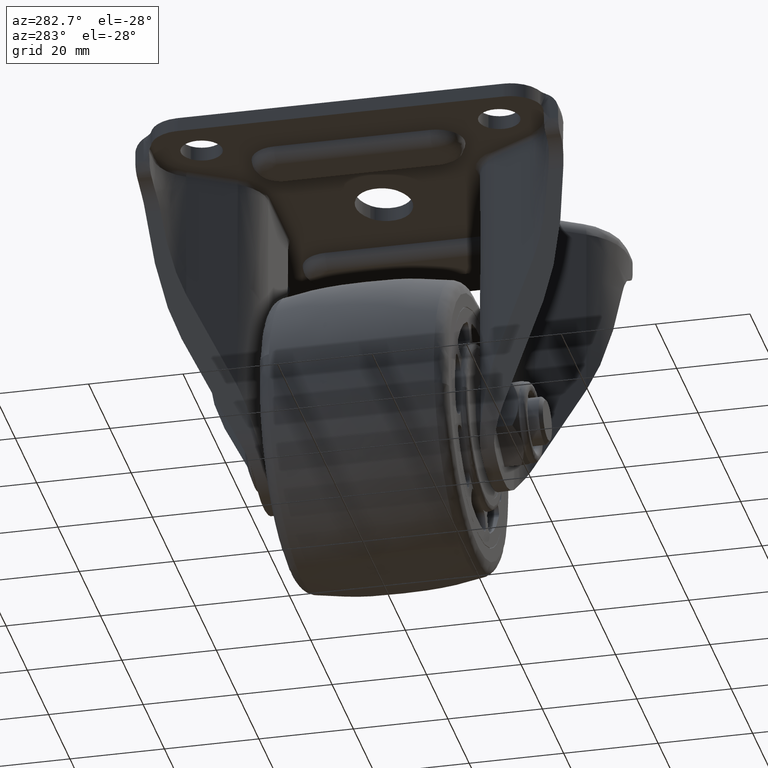
[diagram: clean part render]
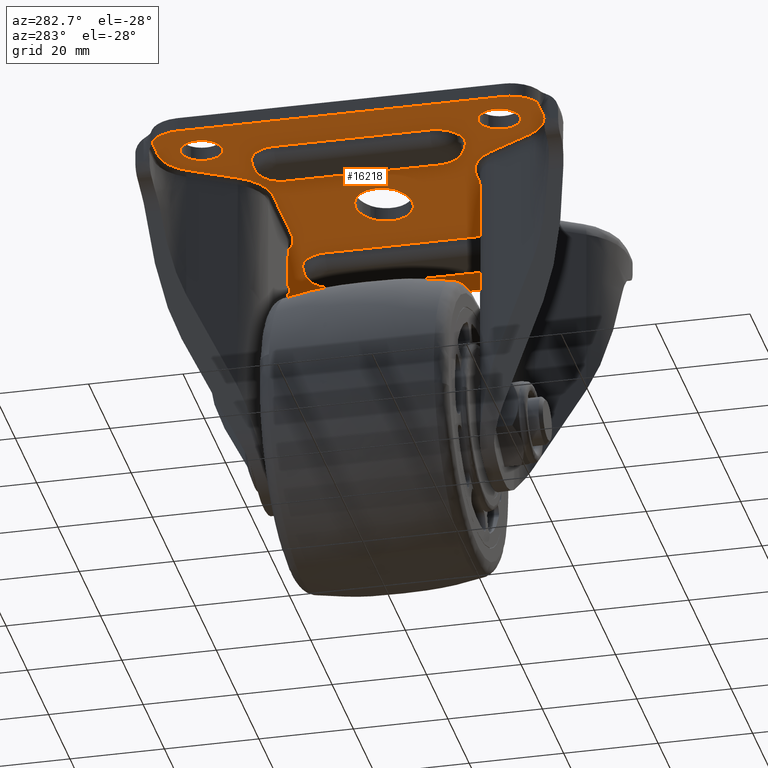
[diagram: same view with one face highlighted and labeled with its STEP entity id]
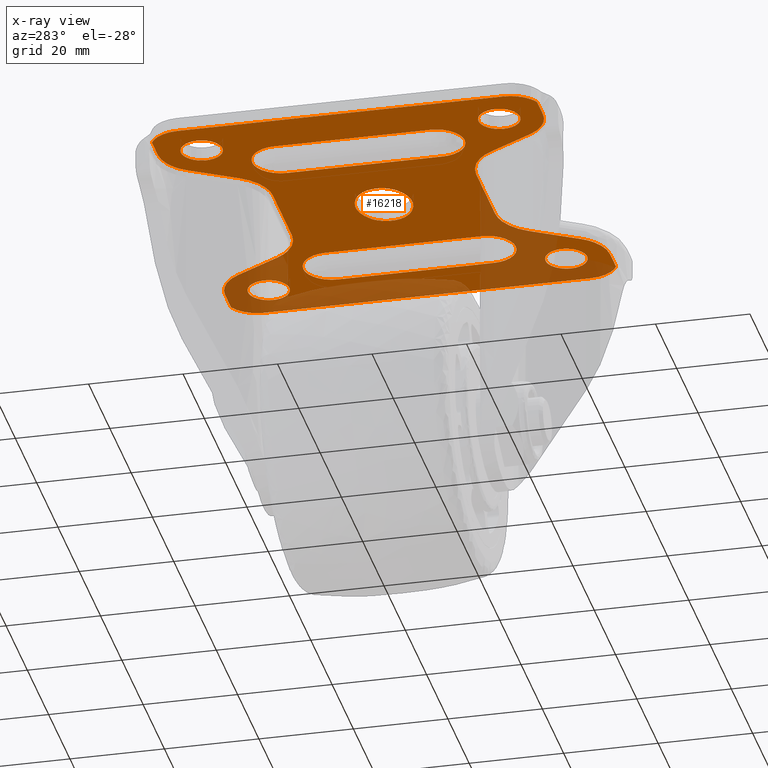
[diagram: x-ray of the same camera — body ghosted, the highlighted face saturated]
A machine part, auxiliary view. The second image highlights one B-rep face of the part: STEP entity #16218.
The next image is the same camera in x-ray: the body ghosted, the highlighted face saturated — about 24% of this face is hidden behind the body in this view.
In plain terms, the highlighted face is a freeform B-spline surface patch.
Its self-contained STEP definition (entity closure, byte-faithful):
#8289=CARTESIAN_POINT('',(-28.308352893407960,34.528759821695118,54.500003000000000));
#8290=VERTEX_POINT('',#8289);
#8296=CARTESIAN_POINT('',(-27.099999900000000,31.500000000000000,54.500003000000000));
#8297=VERTEX_POINT('',#8296);
#8298=CARTESIAN_POINT('',(-27.099999900000000,31.500000000000000,54.500003000000000));
#8299=CARTESIAN_POINT('',(-27.099961874057222,31.795781764652190,54.500003000000042));
#8300=CARTESIAN_POINT('',(-27.159870835632560,32.387316383029223,54.500002999999900));
#8301=CARTESIAN_POINT('',(-27.493199366469891,33.455746531371183,54.500003000000227));
#8302=CARTESIAN_POINT('',(-27.948677937839719,34.150397251370173,54.500002999999722));
#8303=CARTESIAN_POINT('',(-28.308352893407960,34.528759821695118,54.500003000000000));
#8304=B_SPLINE_CURVE_WITH_KNOTS('',3,(#8298,#8299,#8300,#8301,#8302,#8303),.UNSPECIFIED.,.F.,.U.,(4,1,1,4),(0.000000037632441,0.887341779001395,1.774677385146603,3.340579557611305),.UNSPECIFIED.);
#8305=EDGE_CURVE('',#8297,#8290,#8304,.T.);
#8307=CARTESIAN_POINT('',(-31.499998375288079,27.099999900000309,54.500003000000000));
#8308=VERTEX_POINT('',#8307);
#8309=CARTESIAN_POINT('',(-31.499998375288079,27.099999900000309,54.500003000000000));
#8310=CARTESIAN_POINT('',(-31.104013445855429,27.099859128059180,54.500002999999943));
#8311=CARTESIAN_POINT('',(-30.420139794041759,27.192985418786510,54.500003000000120));
#8312=CARTESIAN_POINT('',(-29.475180068213909,27.557480076584628,54.500003000000071));
#8313=CARTESIAN_POINT('',(-28.807318936139911,27.991993301803749,54.500002999999751));
#8314=CARTESIAN_POINT('',(-28.173134579952681,28.581097754903301,54.500003000000198));
#8315=CARTESIAN_POINT('',(-27.697836351974320,29.221957289919651,54.500003000000319));
#8316=CARTESIAN_POINT('',(-27.231365822326321,30.240316986187938,54.500002999999793));
#8317=CARTESIAN_POINT('',(-27.099645939652500,30.995973933530468,54.500002999999900));
#8318=CARTESIAN_POINT('',(-27.099999900000000,31.500000000000000,54.500003000000000));
#8319=B_SPLINE_CURVE_WITH_KNOTS('',3,(#8309,#8310,#8311,#8312,#8313,#8314,#8315,#8316,#8317,#8318),.UNSPECIFIED.,.F.,.U.,(4,1,1,1,1,1,1,4),(0.000000165057606,1.187916259084395,2.051873265929856,3.023841820149113,3.563745588319339,4.643689399017211,5.399651760886236,6.911546446026266),.UNSPECIFIED.);
#8320=EDGE_CURVE('',#8308,#8297,#8319,.T.);
#8322=CARTESIAN_POINT('',(-34.691647106592058,28.471240178304878,54.500003000000000));
#8323=VERTEX_POINT('',#8322);
#8324=CARTESIAN_POINT('',(-34.691647106592058,28.471240178304878,54.500003000000000));
#8325=CARTESIAN_POINT('',(-34.448462015524711,28.214834023982188,54.500002999999893));
#8326=CARTESIAN_POINT('',(-34.015304662815822,27.856749309833852,54.500003000000142));
#8327=CARTESIAN_POINT('',(-33.279393709447660,27.453848197853659,54.500002999999872));
#8328=CARTESIAN_POINT('',(-32.485696730318203,27.176598047854242,54.500003000000447));
#8329=CARTESIAN_POINT('',(-31.853379955868188,27.099915915046068,54.500002999999829));
#8330=CARTESIAN_POINT('',(-31.499998375288079,27.099999900000309,54.500003000000000));
#8331=B_SPLINE_CURVE_WITH_KNOTS('',3,(#8324,#8325,#8326,#8327,#8328,#8329,#8330),.UNSPECIFIED.,.F.,.U.,(4,1,1,1,4),(0.000000046548747,1.060135860994617,1.673902793505502,2.510833440292175,3.570969254778237),.UNSPECIFIED.);
#8332=EDGE_CURVE('',#8323,#8308,#8331,.T.);
#8372=CARTESIAN_POINT('',(-35.900000099999993,31.500000000000000,54.500003000000000));
#8373=VERTEX_POINT('',#8372);
#8374=CARTESIAN_POINT('',(-35.900000099999993,31.500000000000000,54.500003000000000));
#8375=CARTESIAN_POINT('',(-35.900424316878471,30.977974144431450,54.500002999999822));
#8376=CARTESIAN_POINT('',(-35.746434827793387,30.125736741354071,54.500003000000419));
#8377=CARTESIAN_POINT('',(-35.240221983090919,29.125962370750049,54.500002999999417));
#8378=CARTESIAN_POINT('',(-34.871306070410817,28.660537537708560,54.500003000000547));
#8379=CARTESIAN_POINT('',(-34.691647106592058,28.471240178304878,54.500003000000000));
#8380=B_SPLINE_CURVE_WITH_KNOTS('',3,(#8374,#8375,#8376,#8377,#8378,#8379),.UNSPECIFIED.,.F.,.U.,(4,1,1,4),(0.000000037636917,1.565902210149764,2.557631538991624,3.340579557611311),.UNSPECIFIED.);
#8381=EDGE_CURVE('',#8373,#8323,#8380,.T.);
#8383=CARTESIAN_POINT('',(-31.500001624711949,35.900000099999687,54.500003000000000));
#8384=VERTEX_POINT('',#8383);
#8385=CARTESIAN_POINT('',(-31.500001624711949,35.900000099999687,54.500003000000000));
#8386=CARTESIAN_POINT('',(-32.004030866164037,35.900382017262622,54.500002999999921));
#8387=CARTESIAN_POINT('',(-32.687721886191497,35.781178856230831,54.500003000000071));
#8388=CARTESIAN_POINT('',(-33.615886872272057,35.383241309909010,54.500003000000021));
#8389=CARTESIAN_POINT('',(-34.283770165670589,34.948774956104657,54.500002999999943));
#8390=CARTESIAN_POINT('',(-34.897587285775870,34.334897213039511,54.500003000000227));
#8391=CARTESIAN_POINT('',(-35.337007654269257,33.694351125907332,54.500002999999907));
#8392=CARTESIAN_POINT('',(-35.763893667320247,32.777676774052132,54.500003000000092));
#8393=CARTESIAN_POINT('',(-35.900393564057687,32.022030604053917,54.500002999999957));
#8394=CARTESIAN_POINT('',(-35.900000099999993,31.500000000000000,54.500003000000000));
#8395=B_SPLINE_CURVE_WITH_KNOTS('',3,(#8385,#8386,#8387,#8388,#8389,#8390,#8391,#8392,#8393,#8394),.UNSPECIFIED.,.F.,.U.,(4,1,1,1,1,1,1,4),(0.000000165063308,1.511894849814516,2.051873265933588,3.023841820151570,3.887704790399075,4.643689399017598,5.345651877064332,6.911546446026244),.UNSPECIFIED.);
#8396=EDGE_CURVE('',#8384,#8373,#8395,.T.);
#8398=CARTESIAN_POINT('',(-28.308352893407960,34.528759821695118,54.500003000000000));
#8399=CARTESIAN_POINT('',(-28.628270038408129,34.866220926336510,54.500003000000007));
#8400=CARTESIAN_POINT('',(-29.196844972399990,35.300739062714733,54.500003000000007));
#8401=CARTESIAN_POINT('',(-30.291282989573549,35.779120747852652,54.500003000000007));
#8402=CARTESIAN_POINT('',(-31.016371841440488,35.900327967465742,54.500002999999751));
#8403=CARTESIAN_POINT('',(-31.500001624711949,35.900000099999687,54.500003000000000));
#8404=B_SPLINE_CURVE_WITH_KNOTS('',3,(#8398,#8399,#8400,#8401,#8402,#8403),.UNSPECIFIED.,.F.,.U.,(4,1,1,4),(0.000000046548315,1.394913194429176,2.120246373592361,3.570969254778247),.UNSPECIFIED.);
#8405=EDGE_CURVE('',#8290,#8384,#8404,.T.);
#8492=CARTESIAN_POINT('',(34.691647106592043,34.528759821695118,54.500003000000007));
#8493=VERTEX_POINT('',#8492);
#8499=CARTESIAN_POINT('',(35.900000100000000,31.500000000000000,54.500003000000000));
#8500=VERTEX_POINT('',#8499);
#8501=CARTESIAN_POINT('',(35.900000100000000,31.500000000000000,54.500003000000000));
#8502=CARTESIAN_POINT('',(35.900214517542551,31.952400153609151,54.500002999999992));
#8503=CARTESIAN_POINT('',(35.786275940166249,32.682992843077010,54.500003000000049));
#8504=CARTESIAN_POINT('',(35.347192950385669,33.711778000926977,54.500002999999907));
#8505=CARTESIAN_POINT('',(34.955229556047293,34.251180259625073,54.500003000000163));
#8506=CARTESIAN_POINT('',(34.691647106592043,34.528759821695118,54.500003000000007));
#8507=B_SPLINE_CURVE_WITH_KNOTS('',3,(#8501,#8502,#8503,#8504,#8505,#8506),.UNSPECIFIED.,.F.,.U.,(4,1,1,4),(0.000000037639587,1.357120419550008,2.192247096602470,3.340579557611282),.UNSPECIFIED.);
#8508=EDGE_CURVE('',#8500,#8493,#8507,.T.);
#8510=CARTESIAN_POINT('',(31.500001624711921,27.099999900000299,54.500003000000000));
#8511=VERTEX_POINT('',#8510);
#8512=CARTESIAN_POINT('',(31.500001624711921,27.099999900000299,54.500003000000000));
#8513=CARTESIAN_POINT('',(32.004029380207747,27.099621649711199,54.500003000000078));
#8514=CARTESIAN_POINT('',(32.687725566256979,27.218814179376370,54.500002999999850));
#8515=CARTESIAN_POINT('',(33.599293633698039,27.609660381074640,54.500003000000220));
#8516=CARTESIAN_POINT('',(34.238929787237872,28.020184833507201,54.500002999999452));
#8517=CARTESIAN_POINT('',(34.915690473068409,28.672444748644111,54.500003000000852));
#8518=CARTESIAN_POINT('',(35.429528527031657,29.441415686969240,54.500002999999708));
#8519=CARTESIAN_POINT('',(35.807022622829017,30.420139180192638,54.500002999999907));
#8520=CARTESIAN_POINT('',(35.900127818039550,31.104018567759329,54.500003000000063));
#8521=CARTESIAN_POINT('',(35.900000100000000,31.500000000000000,54.500003000000000));
#8522=B_SPLINE_CURVE_WITH_KNOTS('',3,(#8512,#8513,#8514,#8515,#8516,#8517,#8518,#8519,#8520,#8521),.UNSPECIFIED.,.F.,.U.,(4,1,1,1,1,1,1,4),(0.000000165053279,1.511894849806827,2.051873265926996,2.969805656286661,3.779712832370711,4.859673344645708,5.723630351417921,6.911546446026270),.UNSPECIFIED.);
#8523=EDGE_CURVE('',#8511,#8500,#8522,.T.);
#8525=CARTESIAN_POINT('',(28.308352893407939,28.471240178304878,54.500003000000007));
#8526=VERTEX_POINT('',#8525);
#8527=CARTESIAN_POINT('',(28.308352893407939,28.471240178304878,54.500003000000007));
#8528=CARTESIAN_POINT('',(28.666560245171809,28.093166864389271,54.500002999999779));
#8529=CARTESIAN_POINT('',(29.397550898452071,27.556496923785549,54.500003000000412));
#8530=CARTESIAN_POINT('',(30.532875846637751,27.168136121197300,54.500002999999708));
#8531=CARTESIAN_POINT('',(31.202423463998809,27.099967528216030,54.500003000000177));
#8532=CARTESIAN_POINT('',(31.500001624711921,27.099999900000299,54.500003000000000));
#8533=B_SPLINE_CURVE_WITH_KNOTS('',3,(#8527,#8528,#8529,#8530,#8531,#8532),.UNSPECIFIED.,.F.,.U.,(4,1,1,4),(0.000000046549808,1.562315060047133,2.678226932107624,3.570969254778241),.UNSPECIFIED.);
#8534=EDGE_CURVE('',#8526,#8511,#8533,.T.);
#8574=CARTESIAN_POINT('',(27.099999900000000,31.500000000000000,54.500003000000000));
#8575=VERTEX_POINT('',#8574);
#8576=CARTESIAN_POINT('',(27.099999900000000,31.500000000000000,54.500003000000000));
#8577=CARTESIAN_POINT('',(27.099751157226191,31.047594002793840,54.500003000000071));
#8578=CARTESIAN_POINT('',(27.213758850814049,30.317015127759969,54.500002999999950));
#8579=CARTESIAN_POINT('',(27.652791157866250,29.288215114382101,54.500003000000063));
#8580=CARTESIAN_POINT('',(28.044779320666969,28.748826418107129,54.500002999999928));
#8581=CARTESIAN_POINT('',(28.308352893407939,28.471240178304878,54.500003000000007));
#8582=B_SPLINE_CURVE_WITH_KNOTS('',3,(#8576,#8577,#8578,#8579,#8580,#8581),.UNSPECIFIED.,.F.,.U.,(4,1,1,4),(0.000000037632536,1.357120419546396,2.192247096601001,3.340579557611325),.UNSPECIFIED.);
#8583=EDGE_CURVE('',#8575,#8526,#8582,.T.);
#8585=CARTESIAN_POINT('',(31.499998375288040,35.900000099999687,54.500003000000000));
#8586=VERTEX_POINT('',#8585);
#8587=CARTESIAN_POINT('',(31.499998375288040,35.900000099999687,54.500003000000000));
#8588=CARTESIAN_POINT('',(31.104013986632719,35.900142252689768,54.500003000000007));
#8589=CARTESIAN_POINT('',(30.420139167317721,35.807011778361080,54.500003000000021));
#8590=CARTESIAN_POINT('',(29.475185982960109,35.442517964331508,54.500002999999978));
#8591=CARTESIAN_POINT('',(28.640294067643051,34.899423045899177,54.500003000000113));
#8592=CARTESIAN_POINT('',(27.993783392616919,34.211964042570358,54.500002999999957));
#8593=CARTESIAN_POINT('',(27.478025483995939,33.363269949346567,54.500003000000042));
#8594=CARTESIAN_POINT('',(27.171539948373368,32.489946419025372,54.500003000000007));
#8595=CARTESIAN_POINT('',(27.099974205908339,31.805964946431530,54.500003000000000));
#8596=CARTESIAN_POINT('',(27.099999900000000,31.500000000000000,54.500003000000000));
#8597=B_SPLINE_CURVE_WITH_KNOTS('',3,(#8587,#8588,#8589,#8590,#8591,#8592,#8593,#8594,#8595,#8596),.UNSPECIFIED.,.F.,.U.,(4,1,1,1,1,1,1,4),(0.000000165058506,1.187916259084894,2.051873265930002,3.023841820149307,4.157706803877346,4.859673344646424,5.993631104921098,6.911546446026248),.UNSPECIFIED.);
#8598=EDGE_CURVE('',#8586,#8575,#8597,.T.);
#8600=CARTESIAN_POINT('',(34.691647106592043,34.528759821695118,54.500003000000007));
#8601=CARTESIAN_POINT('',(34.333440955811540,34.906841391888420,54.500003000000021));
#8602=CARTESIAN_POINT('',(33.602442675795537,35.443478913548233,54.500003000000262));
#8603=CARTESIAN_POINT('',(32.467128877274767,35.831884557195437,54.500002999999431));
#8604=CARTESIAN_POINT('',(31.797575044524830,35.900024149406690,54.500003000000731));
#8605=CARTESIAN_POINT('',(31.499998375288040,35.900000099999687,54.500003000000000));
#8606=B_SPLINE_CURVE_WITH_KNOTS('',3,(#8600,#8601,#8602,#8603,#8604,#8605),.UNSPECIFIED.,.F.,.U.,(4,1,1,4),(0.000000046544720,1.562315060044489,2.678226932106775,3.570969254778293),.UNSPECIFIED.);
#8607=EDGE_CURVE('',#8493,#8586,#8606,.T.);
#8693=CARTESIAN_POINT('',(34.691647106592043,-28.471240178304878,54.500003000000007));
#8694=VERTEX_POINT('',#8693);
#8700=CARTESIAN_POINT('',(35.900000100000000,-31.500000000000000,54.500003000000000));
#8701=VERTEX_POINT('',#8700);
#8702=CARTESIAN_POINT('',(35.900000100000000,-31.500000000000000,54.500003000000000));
#8703=CARTESIAN_POINT('',(35.900357938227742,-30.977981245764369,54.500003000000000));
#8704=CARTESIAN_POINT('',(35.752775898503451,-30.160522980649709,54.500003000000163));
#8705=CARTESIAN_POINT('',(35.258978461704828,-29.156101078629430,54.500002999999822));
#8706=CARTESIAN_POINT('',(34.895278979365727,-28.685764283665200,54.500003000000440));
#8707=CARTESIAN_POINT('',(34.691647106592043,-28.471240178304878,54.500003000000007));
#8708=B_SPLINE_CURVE_WITH_KNOTS('',3,(#8702,#8703,#8704,#8705,#8706,#8707),.UNSPECIFIED.,.F.,.U.,(4,1,1,4),(0.000000037634785,1.565902210149146,2.453237816244050,3.340579557611314),.UNSPECIFIED.);
#8709=EDGE_CURVE('',#8701,#8694,#8708,.T.);
#8711=CARTESIAN_POINT('',(31.500001624711921,-35.900000099999701,54.500003000000000));
#8712=VERTEX_POINT('',#8711);
#8713=CARTESIAN_POINT('',(31.500001624711921,-35.900000099999701,54.500003000000000));
#8714=CARTESIAN_POINT('',(31.967980530680439,-35.900219312775540,54.500003000000049));
#8715=CARTESIAN_POINT('',(32.813799875176457,-35.763775618567053,54.500003000000049));
#8716=CARTESIAN_POINT('',(33.958885907949643,-35.213563879547408,54.500002999999957));
#8717=CARTESIAN_POINT('',(34.780363163442438,-34.496074476721397,54.500003000000248));
#8718=CARTESIAN_POINT('',(35.394758224206363,-33.623613968791886,54.500002999999253));
#8719=CARTESIAN_POINT('',(35.797257092815492,-32.651860725561797,54.500003000000703));
#8720=CARTESIAN_POINT('',(35.900136541482887,-31.895983543093930,54.500002999999673));
#8721=CARTESIAN_POINT('',(35.900000100000000,-31.500000000000000,54.500003000000000));
#8722=B_SPLINE_CURVE_WITH_KNOTS('',3,(#8713,#8714,#8715,#8716,#8717,#8718,#8719,#8720,#8721),.UNSPECIFIED.,.F.,.U.,(4,1,1,1,1,1,4),(0.000000165047096,1.403900204646972,2.537857964847753,3.779712832370567,4.643689399015727,5.723630351417848,6.911546446026269),.UNSPECIFIED.);
#8723=EDGE_CURVE('',#8712,#8701,#8722,.T.);
#8725=CARTESIAN_POINT('',(28.308352893407939,-34.528759821695132,54.500003000000007));
#8726=VERTEX_POINT('',#8725);
#8727=CARTESIAN_POINT('',(28.308352893407939,-34.528759821695132,54.500003000000007));
#8728=CARTESIAN_POINT('',(28.551542680505658,-34.785155650289077,54.500002999999992));
#8729=CARTESIAN_POINT('',(29.027989051386641,-35.179077234430558,54.500003000000177));
#8730=CARTESIAN_POINT('',(29.855276183575381,-35.611777891686543,54.500003000000007));
#8731=CARTESIAN_POINT('',(30.663050828612121,-35.848703162880071,54.500002999999673));
#8732=CARTESIAN_POINT('',(31.239621229453551,-35.900017899905471,54.500003000000262));
#8733=CARTESIAN_POINT('',(31.500001624711921,-35.900000099999701,54.500003000000000));
#8734=B_SPLINE_CURVE_WITH_KNOTS('',3,(#8727,#8728,#8729,#8730,#8731,#8732,#8733),.UNSPECIFIED.,.F.,.U.,(4,1,1,1,4),(0.000000046547245,1.060135860993401,1.841254990360974,2.789821618796129,3.570969254778234),.UNSPECIFIED.);
#8735=EDGE_CURVE('',#8726,#8712,#8734,.T.);
#8775=CARTESIAN_POINT('',(27.099999900000000,-31.500000000000000,54.500003000000000));
#8776=VERTEX_POINT('',#8775);
#8777=CARTESIAN_POINT('',(27.099999900000000,-31.500000000000000,54.500003000000000));
#8778=CARTESIAN_POINT('',(27.099971474679329,-31.795776793509550,54.500002999999957));
#8779=CARTESIAN_POINT('',(27.166870989284860,-32.456930384424062,54.500003000000071));
#8780=CARTESIAN_POINT('',(27.526382963213688,-33.519956812621793,54.500002999999893));
#8781=CARTESIAN_POINT('',(27.996820351056989,-34.200742196650857,54.500002999999957));
#8782=CARTESIAN_POINT('',(28.308352893407939,-34.528759821695132,54.500003000000007));
#8783=B_SPLINE_CURVE_WITH_KNOTS('',3,(#8777,#8778,#8779,#8780,#8781,#8782),.UNSPECIFIED.,.F.,.U.,(4,1,1,4),(0.000000037636137,0.887341779003935,1.983459175746283,3.340579557611314),.UNSPECIFIED.);
#8784=EDGE_CURVE('',#8776,#8726,#8783,.T.);
#8786=CARTESIAN_POINT('',(31.499998375288040,-27.099999900000299,54.500003000000000));
#8787=VERTEX_POINT('',#8786);
#8788=CARTESIAN_POINT('',(31.499998375288040,-27.099999900000299,54.500003000000000));
#8789=CARTESIAN_POINT('',(31.104015558227779,-27.099860983107611,54.500002999999921));
#8790=CARTESIAN_POINT('',(30.420157137515300,-27.193012738903910,54.500003000000213));
#8791=CARTESIAN_POINT('',(29.356955105904490,-27.602899430518690,54.500003000000049));
#8792=CARTESIAN_POINT('',(28.541686762647110,-28.184662907209379,54.500002999999552));
#8793=CARTESIAN_POINT('',(27.869180476514099,-28.964504764149250,54.500003000000042));
#8794=CARTESIAN_POINT('',(27.485369772294309,-29.641976823416972,54.500002999999651));
#8795=CARTESIAN_POINT('',(27.180763190659039,-30.510147261901949,54.500003000000042));
#8796=CARTESIAN_POINT('',(27.099857185601032,-31.104008440469251,54.500003000000113));
#8797=CARTESIAN_POINT('',(27.099999900000000,-31.500000000000000,54.500003000000000));
#8798=B_SPLINE_CURVE_WITH_KNOTS('',3,(#8788,#8789,#8790,#8791,#8792,#8793,#8794,#8795,#8796,#8797),.UNSPECIFIED.,.F.,.U.,(4,1,1,1,1,1,1,4),(0.000000165054288,1.187916259081757,2.051873265927928,3.401827155412396,4.157706803876646,5.129662972825223,5.723630351418000,6.911546446026248),.UNSPECIFIED.);
#8799=EDGE_CURVE('',#8787,#8776,#8798,.T.);
#8801=CARTESIAN_POINT('',(34.691647106592043,-28.471240178304878,54.500003000000007));
#8802=CARTESIAN_POINT('',(34.461231220498917,-28.228383461045361,54.500002999999928));
#8803=CARTESIAN_POINT('',(33.872959911411570,-27.735336489133989,54.500003000000270));
#8804=CARTESIAN_POINT('',(32.783251161811272,-27.225701645432778,54.500002999999609));
#8805=CARTESIAN_POINT('',(31.927781722910439,-27.099843251831849,54.500003000000312));
#8806=CARTESIAN_POINT('',(31.499998375288040,-27.099999900000299,54.500003000000000));
#8807=B_SPLINE_CURVE_WITH_KNOTS('',3,(#8801,#8802,#8803,#8804,#8805,#8806),.UNSPECIFIED.,.F.,.U.,(4,1,1,4),(0.000000046547335,1.004337014681092,2.287649006000833,3.570969254778265),.UNSPECIFIED.);
#8808=EDGE_CURVE('',#8694,#8787,#8807,.T.);
#8896=CARTESIAN_POINT('',(-28.308352893407950,-28.471240178304878,54.500003000000000));
#8897=VERTEX_POINT('',#8896);
#8903=CARTESIAN_POINT('',(-27.099999900000000,-31.500000000000000,54.500003000000000));
#8904=VERTEX_POINT('',#8903);
#8905=CARTESIAN_POINT('',(-27.099999900000000,-31.500000000000000,54.500003000000000));
#8906=CARTESIAN_POINT('',(-27.099887399379071,-31.117213423274290,54.500002999999907));
#8907=CARTESIAN_POINT('',(-27.186841798351381,-30.456129170351701,54.500003000000383));
#8908=CARTESIAN_POINT('',(-27.576559872854340,-29.407655021592561,54.500002999999481));
#8909=CARTESIAN_POINT('',(-27.996752262244460,-28.799229317509440,54.500003000000682));
#8910=CARTESIAN_POINT('',(-28.308352893407950,-28.471240178304878,54.500003000000000));
#8911=B_SPLINE_CURVE_WITH_KNOTS('',3,(#8905,#8906,#8907,#8908,#8909,#8910),.UNSPECIFIED.,.F.,.U.,(4,1,1,4),(0.000000037638372,1.148332498692287,1.983459175746980,3.340579557611283),.UNSPECIFIED.);
#8912=EDGE_CURVE('',#8904,#8897,#8911,.T.);
#8914=CARTESIAN_POINT('',(-31.499998375288090,-35.900000099999687,54.500003000000000));
#8915=VERTEX_POINT('',#8914);
#8916=CARTESIAN_POINT('',(-31.499998375288090,-35.900000099999687,54.500003000000000));
#8917=CARTESIAN_POINT('',(-31.104014658132439,-35.900141180291257,54.500003000000000));
#8918=CARTESIAN_POINT('',(-30.420145184913551,-35.807003573407762,54.500003000000049));
#8919=CARTESIAN_POINT('',(-29.407646230269449,-35.416545238072409,54.500002999999857));
#8920=CARTESIAN_POINT('',(-28.643832668806940,-34.892501331913323,54.500003000000383));
#8921=CARTESIAN_POINT('',(-28.050166882750759,-34.261044951307071,54.500002999999658));
#8922=CARTESIAN_POINT('',(-27.584405428498108,-33.573349481610038,54.500003000000170));
#8923=CARTESIAN_POINT('',(-27.202732944518772,-32.651862410470962,54.500002999999957));
#8924=CARTESIAN_POINT('',(-27.099877171535109,-31.895982063423538,54.500003000000000));
#8925=CARTESIAN_POINT('',(-27.099999900000000,-31.500000000000000,54.500003000000000));
#8926=B_SPLINE_CURVE_WITH_KNOTS('',3,(#8916,#8917,#8918,#8919,#8920,#8921,#8922,#8923,#8924,#8925),.UNSPECIFIED.,.F.,.U.,(4,1,1,1,1,1,1,4),(0.000000165048875,1.187916259077231,2.051873265923967,3.239820647283679,3.941740952449900,4.643689399014948,5.723630351417832,6.911546446026265),.UNSPECIFIED.);
#8927=EDGE_CURVE('',#8915,#8904,#8926,.T.);
#8929=CARTESIAN_POINT('',(-34.691647106592050,-34.528759821695132,54.500003000000000));
#8930=VERTEX_POINT('',#8929);
#8931=CARTESIAN_POINT('',(-34.691647106592050,-34.528759821695132,54.500003000000000));
#8932=CARTESIAN_POINT('',(-34.333444235986569,-34.906879269540987,54.500002999999943));
#8933=CARTESIAN_POINT('',(-33.709032984628841,-35.365108383290419,54.500003000000227));
#8934=CARTESIAN_POINT('',(-32.597214127478267,-35.801556120527913,54.500002999999687));
#8935=CARTESIAN_POINT('',(-31.927792096536670,-35.900165823346001,54.500003000000518));
#8936=CARTESIAN_POINT('',(-31.499998375288090,-35.900000099999687,54.500003000000000));
#8937=B_SPLINE_CURVE_WITH_KNOTS('',3,(#8931,#8932,#8933,#8934,#8935,#8936),.UNSPECIFIED.,.F.,.U.,(4,1,1,4),(0.000000046550047,1.562315060046405,2.287649006000256,3.570969254778253),.UNSPECIFIED.);
#8938=EDGE_CURVE('',#8930,#8915,#8937,.T.);
#8978=CARTESIAN_POINT('',(-35.900000099999993,-31.500000000000000,54.500003000000000));
#8979=VERTEX_POINT('',#8978);
#8980=CARTESIAN_POINT('',(-35.900000099999993,-31.500000000000000,54.500003000000000));
#8981=CARTESIAN_POINT('',(-35.900026532482293,-31.795776555683101,54.500003000000063));
#8982=CARTESIAN_POINT('',(-35.833138696074933,-32.456934132085067,54.500002999999907));
#8983=CARTESIAN_POINT('',(-35.473593571917178,-33.519945243376540,54.500003000000092));
#8984=CARTESIAN_POINT('',(-35.003197237971342,-34.200752668023974,54.500002999999978));
#8985=CARTESIAN_POINT('',(-34.691647106592050,-34.528759821695132,54.500003000000000));
#8986=B_SPLINE_CURVE_WITH_KNOTS('',3,(#8980,#8981,#8982,#8983,#8984,#8985),.UNSPECIFIED.,.F.,.U.,(4,1,1,4),(0.000000037634778,0.887341779003536,1.983459175746801,3.340579557611306),.UNSPECIFIED.);
#8987=EDGE_CURVE('',#8979,#8930,#8986,.T.);
#8989=CARTESIAN_POINT('',(-31.500001624711949,-27.099999900000299,54.500003000000000));
#8990=VERTEX_POINT('',#8989);
#8991=CARTESIAN_POINT('',(-31.500001624711949,-27.099999900000299,54.500003000000000));
#8992=CARTESIAN_POINT('',(-31.805975221486172,-27.099950856784151,54.500002999999943));
#8993=CARTESIAN_POINT('',(-32.399911064417971,-27.162214133065660,54.500003000000127));
#8994=CARTESIAN_POINT('',(-33.279229537509309,-27.440724293064740,54.500003000000078));
#8995=CARTESIAN_POINT('',(-34.145872246384293,-27.931593518549821,54.500002999999772));
#8996=CARTESIAN_POINT('',(-34.846521304170722,-28.590572653481921,54.500003000000603));
#8997=CARTESIAN_POINT('',(-35.367691450156762,-29.350334343976080,54.500002999999282));
#8998=CARTESIAN_POINT('',(-35.778239724058487,-30.276225616615370,54.500003000000738));
#8999=CARTESIAN_POINT('',(-35.900239688423881,-31.032004095173448,54.500002999999502));
#9000=CARTESIAN_POINT('',(-35.900000099999993,-31.500000000000000,54.500003000000000));
#9001=B_SPLINE_CURVE_WITH_KNOTS('',3,(#8991,#8992,#8993,#8994,#8995,#8996,#8997,#8998,#8999,#9000),.UNSPECIFIED.,.F.,.U.,(4,1,1,1,1,1,1,4),(0.000000165050821,0.917915505699699,1.781883638329865,2.753839805844518,3.887704790395246,4.643689399015349,5.507646405985277,6.911546446026248),.UNSPECIFIED.);
#9002=EDGE_CURVE('',#8990,#8979,#9001,.T.);
#9004=CARTESIAN_POINT('',(-28.308352893407950,-28.471240178304878,54.500003000000000));
#9005=CARTESIAN_POINT('',(-28.628247427296039,-28.133750131911970,54.500003000000042));
#9006=CARTESIAN_POINT('',(-29.241764147858131,-27.664977611057981,54.500002999999900));
#9007=CARTESIAN_POINT('',(-30.346973239339970,-27.206645378241831,54.500003000000177));
#9008=CARTESIAN_POINT('',(-31.072212439938749,-27.099821177880461,54.500002999999801));
#9009=CARTESIAN_POINT('',(-31.500001624711949,-27.099999900000299,54.500003000000000));
#9010=B_SPLINE_CURVE_WITH_KNOTS('',3,(#9004,#9005,#9006,#9007,#9008,#9009),.UNSPECIFIED.,.F.,.U.,(4,1,1,4),(0.000000046548487,1.394913194429174,2.287649006000196,3.570969254778291),.UNSPECIFIED.);
#9011=EDGE_CURVE('',#8897,#8990,#9010,.T.);
#11739=CARTESIAN_POINT('',(-30.0,-16.500000000000000,54.500000000000000));
#11740=VERTEX_POINT('',#11739);
#11753=CARTESIAN_POINT('',(-30.0,16.500000000000000,54.500000000000000));
#11754=VERTEX_POINT('',#11753);
#11755=CARTESIAN_POINT('',(-30.0,16.500000000000000,54.500000000000000));
#11756=CARTESIAN_POINT('',(-30.0,-16.500000000000000,54.500000000000000));
#11757=QUASI_UNIFORM_CURVE('',1,(#11755,#11756),.UNSPECIFIED.,.F.,.U.);
#11758=EDGE_CURVE('',#11754,#11740,#11757,.T.);
#11829=CARTESIAN_POINT('',(-18.0,16.500000000000000,54.500000000000000));
#11830=VERTEX_POINT('',#11829);
#11847=CARTESIAN_POINT('',(-24.000001396979709,22.499999999999840,54.500000000000000));
#11848=VERTEX_POINT('',#11847);
#11849=CARTESIAN_POINT('',(-24.000001396979709,22.499999999999840,54.500000000000000));
#11850=CARTESIAN_POINT('',(-24.613629689049350,22.500326786832421,54.500000000000199));
#11851=CARTESIAN_POINT('',(-25.693363700879829,22.332819489098629,54.499999999999851));
#11852=CARTESIAN_POINT('',(-27.000046780244759,21.743976756564891,54.499999999999901));
#11853=CARTESIAN_POINT('',(-27.898424907856509,21.094501510958171,54.500000000000178));
#11854=CARTESIAN_POINT('',(-28.629337269226301,20.363639118385770,54.499999999999723));
#11855=CARTESIAN_POINT('',(-29.183153988418709,19.577275853667331,54.500000000000057));
#11856=CARTESIAN_POINT('',(-29.651945448180879,18.601649768649938,54.500000000000043));
#11857=CARTESIAN_POINT('',(-29.934512643099730,17.604472748739170,54.499999999999893));
#11858=CARTESIAN_POINT('',(-30.000018473044051,16.843606173523511,54.500000000000327));
#11859=CARTESIAN_POINT('',(-30.0,16.500000000000000,54.500000000000000));
#11860=B_SPLINE_CURVE_WITH_KNOTS('',3,(#11849,#11850,#11851,#11852,#11853,#11854,#11855,#11856,#11857,#11858,#11859),.UNSPECIFIED.,.F.,.U.,(4,1,1,1,1,1,1,1,4),(0.000000152018512,1.840787502792301,3.239793992715300,4.270641419928698,5.154193871869460,6.332302372042594,7.142259934916535,8.394003055074936,9.424836309894676),.UNSPECIFIED.);
#11861=EDGE_CURVE('',#11848,#11754,#11860,.T.);
#11863=CARTESIAN_POINT('',(-18.0,16.500000000000000,54.500000000000000));
#11864=CARTESIAN_POINT('',(-17.999553943491350,17.187267069983069,54.500000000000050));
#11865=CARTESIAN_POINT('',(-18.213177545626628,18.414175318328411,54.499999999999872));
#11866=CARTESIAN_POINT('',(-18.977528113050820,19.887110550500189,54.500000000000227));
#11867=CARTESIAN_POINT('',(-19.967795138034841,21.020958388085351,54.499999999999822));
#11868=CARTESIAN_POINT('',(-21.040988833547370,21.776754662857130,54.499999999999943));
#11869=CARTESIAN_POINT('',(-22.429369461566100,22.351862506633822,54.499999999999382));
#11870=CARTESIAN_POINT('',(-23.386374713096579,22.500263949156849,54.500000000000718));
#11871=CARTESIAN_POINT('',(-24.000001396979709,22.499999999999840,54.500000000000000));
#11872=B_SPLINE_CURVE_WITH_KNOTS('',3,(#11863,#11864,#11865,#11866,#11867,#11868,#11869,#11870,#11871),.UNSPECIFIED.,.F.,.U.,(4,1,1,1,1,1,4),(0.000000151537915,2.061681304337602,3.681587419243251,4.933306992187985,6.553204469754608,7.584052430143670,9.424837884626241),.UNSPECIFIED.);
#11873=EDGE_CURVE('',#11830,#11848,#11872,.T.);
#11931=CARTESIAN_POINT('',(-18.0,-16.500000000000000,54.500000000000000));
#11932=VERTEX_POINT('',#11931);
#11946=CARTESIAN_POINT('',(-23.999998603020281,-22.499999999999840,54.500000000000000));
#11947=VERTEX_POINT('',#11946);
#11948=CARTESIAN_POINT('',(-23.999998603020281,-22.499999999999840,54.500000000000000));
#11949=CARTESIAN_POINT('',(-23.386350473424589,-22.500353725797691,54.500000000000071));
#11950=CARTESIAN_POINT('',(-22.503006051419721,-22.363196033036310,54.499999999999922));
#11951=CARTESIAN_POINT('',(-21.266543595055271,-21.877516441310579,54.499999999999957));
#11952=CARTESIAN_POINT('',(-20.467670529901412,-21.385270051760180,54.499999999999879));
#11953=CARTESIAN_POINT('',(-19.690096469064031,-20.706099749608150,54.500000000000298));
#11954=CARTESIAN_POINT('',(-19.082693820175908,-19.993167428854061,54.499999999999318));
#11955=CARTESIAN_POINT('',(-18.474801155807359,-18.950303113865210,54.500000000001357));
#11956=CARTESIAN_POINT('',(-18.086954538584848,-17.776281115706709,54.499999999999062));
#11957=CARTESIAN_POINT('',(-17.999976015174241,-16.892686625639751,54.500000000000291));
#11958=CARTESIAN_POINT('',(-18.0,-16.500000000000000,54.500000000000000));
#11959=B_SPLINE_CURVE_WITH_KNOTS('',3,(#11948,#11949,#11950,#11951,#11952,#11953,#11954,#11955,#11956,#11957,#11958),.UNSPECIFIED.,.F.,.U.,(4,1,1,1,1,1,1,1,4),(0.000000152003031,1.840787502780170,2.650735687315231,3.976140107452373,4.638832325518609,5.743251481137515,6.774100118433668,8.246756704651745,9.424836309894761),.UNSPECIFIED.);
#11960=EDGE_CURVE('',#11947,#11932,#11959,.T.);
#11962=CARTESIAN_POINT('',(-30.0,-16.500000000000000,54.500000000000000));
#11963=CARTESIAN_POINT('',(-30.000202108200330,-17.039983298347810,54.499999999999957));
#11964=CARTESIAN_POINT('',(-29.879863284210039,-17.923443290348299,54.500000000000057));
#11965=CARTESIAN_POINT('',(-29.450684616246061,-19.077982853505681,54.499999999999993));
#11966=CARTESIAN_POINT('',(-28.892512173251440,-20.035760997180770,54.499999999999972));
#11967=CARTESIAN_POINT('',(-28.178265635821340,-20.853560003524990,54.500000000000348));
#11968=CARTESIAN_POINT('',(-27.212413164027510,-21.616951491730191,54.499999999999467));
#11969=CARTESIAN_POINT('',(-25.865056402748269,-22.295272455739980,54.500000000001322));
#11970=CARTESIAN_POINT('',(-24.687288180880749,-22.500509243963162,54.499999999998487));
#11971=CARTESIAN_POINT('',(-23.999998603020281,-22.499999999999840,54.500000000000000));
#11972=B_SPLINE_CURVE_WITH_KNOTS('',3,(#11962,#11963,#11964,#11965,#11966,#11967,#11968,#11969,#11970,#11971),.UNSPECIFIED.,.F.,.U.,(4,1,1,1,1,1,1,4),(0.000000151529440,1.619887340532657,2.650736129997573,3.681587419236991,4.933306992183137,5.890498817019872,7.363155649158703,9.424837884626331),.UNSPECIFIED.);
#11973=EDGE_CURVE('',#11740,#11947,#11972,.T.);
#11996=CARTESIAN_POINT('',(-18.0,16.500000000000000,54.500000000000000));
#11997=CARTESIAN_POINT('',(-18.0,-16.500000000000000,54.500000000000000));
#11998=QUASI_UNIFORM_CURVE('',1,(#11996,#11997),.UNSPECIFIED.,.F.,.U.);
#11999=EDGE_CURVE('',#11830,#11932,#11998,.T.);
#12235=CARTESIAN_POINT('',(30.0,-16.500000000000000,54.500000000000000));
#12236=VERTEX_POINT('',#12235);
#12250=CARTESIAN_POINT('',(30.0,16.500000000000000,54.500000000000000));
#12251=VERTEX_POINT('',#12250);
#12264=CARTESIAN_POINT('',(30.0,16.500000000000000,54.500000000000000));
#12265=CARTESIAN_POINT('',(30.0,-16.500000000000000,54.500000000000000));
#12266=QUASI_UNIFORM_CURVE('',1,(#12264,#12265),.UNSPECIFIED.,.F.,.U.);
#12267=EDGE_CURVE('',#12251,#12236,#12266,.T.);
#12325=CARTESIAN_POINT('',(18.0,16.500000000000000,54.500000000000000));
#12326=VERTEX_POINT('',#12325);
#12340=CARTESIAN_POINT('',(23.999998603020281,22.499999999999840,54.500000000000000));
#12341=VERTEX_POINT('',#12340);
#12342=CARTESIAN_POINT('',(23.999998603020281,22.499999999999840,54.500000000000000));
#12343=CARTESIAN_POINT('',(23.386350473424589,22.500353725797691,54.500000000000071));
#12344=CARTESIAN_POINT('',(22.503006051419721,22.363196033036310,54.499999999999922));
#12345=CARTESIAN_POINT('',(21.266543595055271,21.877516441310579,54.499999999999957));
#12346=CARTESIAN_POINT('',(20.467670529901412,21.385270051760180,54.499999999999879));
#12347=CARTESIAN_POINT('',(19.690096469064031,20.706099749608150,54.500000000000298));
#12348=CARTESIAN_POINT('',(19.082693820175908,19.993167428854061,54.499999999999318));
#12349=CARTESIAN_POINT('',(18.474801155807359,18.950303113865210,54.500000000001357));
#12350=CARTESIAN_POINT('',(18.086954538584848,17.776281115706709,54.499999999999062));
#12351=CARTESIAN_POINT('',(17.999976015174241,16.892686625639751,54.500000000000291));
#12352=CARTESIAN_POINT('',(18.0,16.500000000000000,54.500000000000000));
#12353=B_SPLINE_CURVE_WITH_KNOTS('',3,(#12342,#12343,#12344,#12345,#12346,#12347,#12348,#12349,#12350,#12351,#12352),.UNSPECIFIED.,.F.,.U.,(4,1,1,1,1,1,1,1,4),(0.000000152003031,1.840787502780170,2.650735687315231,3.976140107452373,4.638832325518609,5.743251481137515,6.774100118433668,8.246756704651745,9.424836309894761),.UNSPECIFIED.);
#12354=EDGE_CURVE('',#12341,#12326,#12353,.T.);
#12356=CARTESIAN_POINT('',(30.0,16.500000000000000,54.500000000000000));
#12357=CARTESIAN_POINT('',(30.000202108200330,17.039983298347810,54.499999999999957));
#12358=CARTESIAN_POINT('',(29.879863284210039,17.923443290348299,54.500000000000057));
#12359=CARTESIAN_POINT('',(29.450684616246061,19.077982853505681,54.499999999999993));
#12360=CARTESIAN_POINT('',(28.892512173251440,20.035760997180770,54.499999999999972));
#12361=CARTESIAN_POINT('',(28.178265635821340,20.853560003524990,54.500000000000348));
#12362=CARTESIAN_POINT('',(27.212413164027510,21.616951491730191,54.499999999999467));
#12363=CARTESIAN_POINT('',(25.865056402748269,22.295272455739980,54.500000000001322));
#12364=CARTESIAN_POINT('',(24.687288180880749,22.500509243963162,54.499999999998487));
#12365=CARTESIAN_POINT('',(23.999998603020281,22.499999999999840,54.500000000000000));
#12366=B_SPLINE_CURVE_WITH_KNOTS('',3,(#12356,#12357,#12358,#12359,#12360,#12361,#12362,#12363,#12364,#12365),.UNSPECIFIED.,.F.,.U.,(4,1,1,1,1,1,1,4),(0.000000151529440,1.619887340532657,2.650736129997573,3.681587419236991,4.933306992183137,5.890498817019872,7.363155649158703,9.424837884626331),.UNSPECIFIED.);
#12367=EDGE_CURVE('',#12251,#12341,#12366,.T.);
#12428=CARTESIAN_POINT('',(18.0,-16.500000000000000,54.500000000000000));
#12429=VERTEX_POINT('',#12428);
#12446=CARTESIAN_POINT('',(24.000001396979709,-22.499999999999840,54.500000000000000));
#12447=VERTEX_POINT('',#12446);
#12448=CARTESIAN_POINT('',(24.000001396979709,-22.499999999999840,54.500000000000000));
#12449=CARTESIAN_POINT('',(24.613629689049350,-22.500326786832421,54.500000000000199));
#12450=CARTESIAN_POINT('',(25.693363700879829,-22.332819489098629,54.499999999999851));
#12451=CARTESIAN_POINT('',(27.000046780244759,-21.743976756564891,54.499999999999901));
#12452=CARTESIAN_POINT('',(27.898424907856509,-21.094501510958171,54.500000000000178));
#12453=CARTESIAN_POINT('',(28.629337269226301,-20.363639118385770,54.499999999999723));
#12454=CARTESIAN_POINT('',(29.183153988418709,-19.577275853667331,54.500000000000057));
#12455=CARTESIAN_POINT('',(29.651945448180879,-18.601649768649938,54.500000000000043));
#12456=CARTESIAN_POINT('',(29.934512643099730,-17.604472748739170,54.499999999999893));
#12457=CARTESIAN_POINT('',(30.000018473044051,-16.843606173523511,54.500000000000327));
#12458=CARTESIAN_POINT('',(30.0,-16.500000000000000,54.500000000000000));
#12459=B_SPLINE_CURVE_WITH_KNOTS('',3,(#12448,#12449,#12450,#12451,#12452,#12453,#12454,#12455,#12456,#12457,#12458),.UNSPECIFIED.,.F.,.U.,(4,1,1,1,1,1,1,1,4),(0.000000152018512,1.840787502792301,3.239793992715300,4.270641419928698,5.154193871869460,6.332302372042594,7.142259934916535,8.394003055074936,9.424836309894676),.UNSPECIFIED.);
#12460=EDGE_CURVE('',#12447,#12236,#12459,.T.);
#12462=CARTESIAN_POINT('',(18.0,-16.500000000000000,54.500000000000000));
#12463=CARTESIAN_POINT('',(17.999553943491350,-17.187267069983069,54.500000000000050));
#12464=CARTESIAN_POINT('',(18.213177545626628,-18.414175318328411,54.499999999999872));
#12465=CARTESIAN_POINT('',(18.977528113050820,-19.887110550500189,54.500000000000227));
#12466=CARTESIAN_POINT('',(19.967795138034841,-21.020958388085351,54.499999999999822));
#12467=CARTESIAN_POINT('',(21.040988833547370,-21.776754662857130,54.499999999999943));
#12468=CARTESIAN_POINT('',(22.429369461566100,-22.351862506633822,54.499999999999382));
#12469=CARTESIAN_POINT('',(23.386374713096579,-22.500263949156849,54.500000000000718));
#12470=CARTESIAN_POINT('',(24.000001396979709,-22.499999999999840,54.500000000000000));
#12471=B_SPLINE_CURVE_WITH_KNOTS('',3,(#12462,#12463,#12464,#12465,#12466,#12467,#12468,#12469,#12470),.UNSPECIFIED.,.F.,.U.,(4,1,1,1,1,1,4),(0.000000151537915,2.061681304337602,3.681587419243251,4.933306992187985,6.553204469754608,7.584052430143670,9.424837884626241),.UNSPECIFIED.);
#12472=EDGE_CURVE('',#12429,#12447,#12471,.T.);
#12494=CARTESIAN_POINT('',(18.0,16.500000000000000,54.500000000000000));
#12495=CARTESIAN_POINT('',(18.0,-16.500000000000000,54.500000000000000));
#12496=QUASI_UNIFORM_CURVE('',1,(#12494,#12495),.UNSPECIFIED.,.F.,.U.);
#12497=EDGE_CURVE('',#12326,#12429,#12496,.T.);
#12758=CARTESIAN_POINT('',(5.330382556198060,-4.080382556167201,54.500003000000000));
#12759=VERTEX_POINT('',#12758);
#12765=CARTESIAN_POINT('',(-5.330382556059750,-4.080382556231434,54.500003000000000));
#12766=VERTEX_POINT('',#12765);
#12767=CARTESIAN_POINT('',(-5.330382556059750,-4.080382556231434,54.500003000000000));
#12768=CARTESIAN_POINT('',(-4.936147818445963,-4.406682726047846,54.500003000000000));
#12769=CARTESIAN_POINT('',(-3.962754021238486,-5.071974107875307,54.500003000000028));
#12770=CARTESIAN_POINT('',(-2.475977696146158,-5.681242381540974,54.500002999999921));
#12771=CARTESIAN_POINT('',(-1.054107199394249,-5.961047048297445,54.500003000000113));
#12772=CARTESIAN_POINT('',(0.301424836151455,-6.034428619223353,54.500002999999758));
#12773=CARTESIAN_POINT('',(1.654461588681822,-5.880288449249921,54.500002999999943));
#12774=CARTESIAN_POINT('',(3.042401894114643,-5.463573297649813,54.500003000000341));
#12775=CARTESIAN_POINT('',(4.240003447156705,-4.887564761221462,54.500002999999239));
#12776=CARTESIAN_POINT('',(4.982528087177831,-4.368302867098424,54.500003000001072));
#12777=CARTESIAN_POINT('',(5.330382556198060,-4.080382556167201,54.500003000000000));
#12778=B_SPLINE_CURVE_WITH_KNOTS('',3,(#12767,#12768,#12769,#12770,#12771,#12772,#12773,#12774,#12775,#12776,#12777),.UNSPECIFIED.,.F.,.U.,(4,1,1,1,1,1,1,1,4),(0.000000098475651,1.535281019787618,3.522158444850360,4.786550040742246,5.870221450051619,7.586163816163195,8.850546808258843,10.205234063697720,11.559895961683649),.UNSPECIFIED.);
#12779=EDGE_CURVE('',#12766,#12759,#12778,.T.);
#12820=CARTESIAN_POINT('',(-5.330382556084820,4.080382556270325,54.500003000000000));
#12821=VERTEX_POINT('',#12820);
#12822=CARTESIAN_POINT('',(-5.330382556084820,4.080382556270325,54.500003000000000));
#12823=CARTESIAN_POINT('',(-5.592047292727747,3.863858884637931,54.500002999999992));
#12824=CARTESIAN_POINT('',(-6.142425276399806,3.311198950255963,54.500003000000000));
#12825=CARTESIAN_POINT('',(-6.716867293202391,2.401815789038796,54.500003000000071));
#12826=CARTESIAN_POINT('',(-7.117015420560487,1.329877762530722,54.500002999999822));
#12827=CARTESIAN_POINT('',(-7.278463596808350,0.316761612297568,54.500003000000071));
#12828=CARTESIAN_POINT('',(-7.224549819292332,-0.802401734141220,54.500003000000063));
#12829=CARTESIAN_POINT('',(-6.961665184491952,-1.843646989878908,54.500002999999602));
#12830=CARTESIAN_POINT('',(-6.376556223275001,-3.023621759528394,54.500003000000412));
#12831=CARTESIAN_POINT('',(-5.760489027515060,-3.724836480778180,54.500002999999843));
#12832=CARTESIAN_POINT('',(-5.330382556059750,-4.080382556231434,54.500003000000000));
#12833=B_SPLINE_CURVE_WITH_KNOTS('',3,(#12822,#12823,#12824,#12825,#12826,#12827,#12828,#12829,#12830,#12831,#12832),.UNSPECIFIED.,.F.,.U.,(4,1,1,1,1,1,1,1,4),(0.000000187444583,1.018921570587096,2.329041813504643,3.202440596119719,4.439759824363139,5.385904823959944,6.550423273634506,7.642170276832058,9.316161660528980),.UNSPECIFIED.);
#12834=EDGE_CURVE('',#12821,#12766,#12833,.T.);
#12874=CARTESIAN_POINT('',(5.330382556189541,4.080382556165495,54.500003000000000));
#12875=VERTEX_POINT('',#12874);
#12876=CARTESIAN_POINT('',(5.330382556189541,4.080382556165495,54.500003000000000));
#12877=CARTESIAN_POINT('',(4.936154575914928,4.406701022265291,54.500003000000063));
#12878=CARTESIAN_POINT('',(4.137434155408880,4.952475695546006,54.500002999999822));
#12879=CARTESIAN_POINT('',(2.762695423216548,5.577510043013840,54.500003000000298));
#12880=CARTESIAN_POINT('',(1.472721031961688,5.904728679445695,54.500002999999843));
#12881=CARTESIAN_POINT('',(0.061304186976429,6.034705532431477,54.500003000000000));
#12882=CARTESIAN_POINT('',(-1.266720141847911,5.948516272464083,54.500003000000021));
#12883=CARTESIAN_POINT('',(-2.615204332172113,5.614114254212797,54.500003000000170));
#12884=CARTESIAN_POINT('',(-3.980483975191096,5.046076502435404,54.500002999999637));
#12885=CARTESIAN_POINT('',(-4.843434580428855,4.483552558835624,54.500003000001300));
#12886=CARTESIAN_POINT('',(-5.330382556084820,4.080382556270325,54.500003000000000));
#12887=B_SPLINE_CURVE_WITH_KNOTS('',3,(#12876,#12877,#12878,#12879,#12880,#12881,#12882,#12883,#12884,#12885,#12886),.UNSPECIFIED.,.F.,.U.,(4,1,1,1,1,1,1,1,4),(0.000000098472874,1.535281019785112,2.889974645049637,4.515610690272632,5.509022729996331,7.134609931265338,8.489297186706070,9.663359838096948,11.559895961684360),.UNSPECIFIED.);
#12888=EDGE_CURVE('',#12875,#12821,#12887,.T.);
#12926=CARTESIAN_POINT('',(5.330382556198060,-4.080382556167201,54.500003000000000));
#12927=CARTESIAN_POINT('',(5.723040365835673,-3.755718511994680,54.500003000000007));
#12928=CARTESIAN_POINT('',(6.298209359512976,-3.119098830762490,54.500003000000063));
#12929=CARTESIAN_POINT('',(6.818881479734741,-2.153762125174163,54.500002999999921));
#12930=CARTESIAN_POINT('',(7.133925805375182,-1.233456211033221,54.500002999999943));
#12931=CARTESIAN_POINT('',(7.284638507978661,-0.244175547997402,54.500003000000177));
#12932=CARTESIAN_POINT('',(7.209318782432801,0.972988057997487,54.500002999999793));
#12933=CARTESIAN_POINT('',(6.838938702366505,2.190244563866425,54.500003000000468));
#12934=CARTESIAN_POINT('',(6.174721691813562,3.274155645898170,54.500002999999893));
#12935=CARTESIAN_POINT('',(5.610756623697330,3.848405843410647,54.500003000000007));
#12936=CARTESIAN_POINT('',(5.330382556189541,4.080382556165495,54.500003000000000));
#12937=B_SPLINE_CURVE_WITH_KNOTS('',3,(#12926,#12927,#12928,#12929,#12930,#12931,#12932,#12933,#12934,#12935,#12936),.UNSPECIFIED.,.F.,.U.,(4,1,1,1,1,1,1,1,4),(0.000000187445185,1.528422582698985,2.547394067855138,3.275237031952852,4.439759824257412,5.531436297234674,6.914337401577070,8.224455253941867,9.316161660306506),.UNSPECIFIED.);
#12938=EDGE_CURVE('',#12759,#12875,#12937,.T.);
#13897=CARTESIAN_POINT('',(-31.529715012457750,40.750000000000000,54.500003000000000));
#13898=VERTEX_POINT('',#13897);
#13909=CARTESIAN_POINT('',(-37.152380053229649,40.750000000000000,54.500003000000000));
#13910=VERTEX_POINT('',#13909);
#13911=CARTESIAN_POINT('',(-37.152380053229649,40.750000000000000,54.500003000000000));
#13912=CARTESIAN_POINT('',(-31.529715012457750,40.750000000000000,54.500003000000000));
#13913=QUASI_UNIFORM_CURVE('',1,(#13911,#13912),.UNSPECIFIED.,.F.,.U.);
#13914=EDGE_CURVE('',#13910,#13898,#13913,.T.);
#13943=CARTESIAN_POINT('',(-23.620823420381601,36.249939763953051,54.500003000000000));
#13944=VERTEX_POINT('',#13943);
#13955=CARTESIAN_POINT('',(-31.529715012457750,40.750000000000000,54.500003000000000));
#13956=CARTESIAN_POINT('',(-30.810863897569568,40.750155610642437,54.500003000000078));
#13957=CARTESIAN_POINT('',(-29.472412524960710,40.592306335813490,54.500002999999943));
#13958=CARTESIAN_POINT('',(-27.566782655560051,39.928067929359123,54.500003000000007));
#13959=CARTESIAN_POINT('',(-26.053442852476010,39.009297763721932,54.500002999999857));
#13960=CARTESIAN_POINT('',(-24.684434170382112,37.780357363000547,54.500003000000092));
#13961=CARTESIAN_POINT('',(-23.975261614421669,36.846679586374279,54.500002999999957));
#13962=CARTESIAN_POINT('',(-23.620823420381601,36.249939763953051,54.500003000000000));
#13963=B_SPLINE_CURVE_WITH_KNOTS('',3,(#13955,#13956,#13957,#13958,#13959,#13960,#13961,#13962),.UNSPECIFIED.,.F.,.U.,(4,1,1,1,1,4),(0.000000046461208,2.156515845646507,4.015605552145679,6.023370535711269,7.436266767104783,9.518418885930872),.UNSPECIFIED.);
#13964=EDGE_CURVE('',#13898,#13944,#13963,.T.);
#13985=CARTESIAN_POINT('',(-17.907601716953401,26.635934736209151,54.500003000000000));
#13986=VERTEX_POINT('',#13985);
#13998=CARTESIAN_POINT('',(-23.620823420381601,36.249939763953051,54.500003000000000));
#13999=CARTESIAN_POINT('',(-17.907601716953401,26.635934736209151,54.500003000000000));
#14000=QUASI_UNIFORM_CURVE('',1,(#13998,#13999),.UNSPECIFIED.,.F.,.U.);
#14001=EDGE_CURVE('',#13944,#13986,#14000,.T.);
#14025=CARTESIAN_POINT('',(-8.881149699124089,21.499996999999901,54.500003000000000));
#14026=VERTEX_POINT('',#14025);
#14038=CARTESIAN_POINT('',(-17.907601716953401,26.635934736209151,54.500003000000000));
#14039=CARTESIAN_POINT('',(-17.589702092401868,26.100865693156880,54.500003000000191));
#14040=CARTESIAN_POINT('',(-16.941432062141129,25.202705153711090,54.500002999999623));
#14041=CARTESIAN_POINT('',(-15.841563672998159,24.096926194872012,54.500003000000518));
#14042=CARTESIAN_POINT('',(-14.694708590543680,23.216531978753469,54.500002999999531));
#14043=CARTESIAN_POINT('',(-13.215531739494830,22.374787104837939,54.500003000000213));
#14044=CARTESIAN_POINT('',(-11.257456868706059,21.683271498635591,54.500003000000163));
#14045=CARTESIAN_POINT('',(-9.701575032662149,21.499826701372928,54.500002999999261));
#14046=CARTESIAN_POINT('',(-8.881149699124089,21.499996999999901,54.500003000000000));
#14047=B_SPLINE_CURVE_WITH_KNOTS('',3,(#14038,#14039,#14040,#14041,#14042,#14043,#14044,#14045,#14046),.UNSPECIFIED.,.F.,.U.,(4,1,1,1,1,1,4),(0.000000046818640,1.867139015602445,3.309948806472787,4.667881867796439,6.195531036578176,8.402173094528493,10.863412188126251),.UNSPECIFIED.);
#14048=EDGE_CURVE('',#13986,#14026,#14047,.T.);
#14069=CARTESIAN_POINT('',(8.881149699124249,21.499996999999851,54.500003000000000));
#14070=VERTEX_POINT('',#14069);
#14082=CARTESIAN_POINT('',(-8.881149699124089,21.499996999999901,54.500003000000000));
#14083=CARTESIAN_POINT('',(8.881149699124249,21.499996999999851,54.500003000000000));
#14084=QUASI_UNIFORM_CURVE('',1,(#14082,#14083),.UNSPECIFIED.,.F.,.U.);
#14085=EDGE_CURVE('',#14026,#14070,#14084,.T.);
#14109=CARTESIAN_POINT('',(17.907601716953600,26.635934736208949,54.500003000000000));
#14110=VERTEX_POINT('',#14109);
#14122=CARTESIAN_POINT('',(8.881149699124249,21.499996999999851,54.500003000000000));
#14123=CARTESIAN_POINT('',(9.560114585028776,21.499909608891169,54.500002999999971));
#14124=CARTESIAN_POINT('',(10.861423989606431,21.626677049776770,54.500002999999957));
#14125=CARTESIAN_POINT('',(12.797834506666391,22.189503562558940,54.500003000000120));
#14126=CARTESIAN_POINT('',(14.696514653912709,23.160662720019481,54.500002999999872));
#14127=CARTESIAN_POINT('',(16.501446527701169,24.641511353516130,54.500002999999751));
#14128=CARTESIAN_POINT('',(17.488616237514400,25.930564753950119,54.500002999999843));
#14129=CARTESIAN_POINT('',(17.907601716953600,26.635934736208949,54.500003000000000));
#14130=B_SPLINE_CURVE_WITH_KNOTS('',3,(#14122,#14123,#14124,#14125,#14126,#14127,#14128,#14129),.UNSPECIFIED.,.F.,.U.,(4,1,1,1,1,4),(0.000000046819210,2.036881072709518,3.904047661748926,6.025795465333017,8.402173094528981,10.863412188126230),.UNSPECIFIED.);
#14131=EDGE_CURVE('',#14070,#14110,#14130,.T.);
#14152=CARTESIAN_POINT('',(23.620823720645650,36.249940269226002,54.500003000000000));
#14153=VERTEX_POINT('',#14152);
#14164=CARTESIAN_POINT('',(17.907601716953600,26.635934736208949,54.500003000000000));
#14165=CARTESIAN_POINT('',(23.620823720645650,36.249940269226002,54.500003000000000));
#14166=QUASI_UNIFORM_CURVE('',1,(#14164,#14165),.UNSPECIFIED.,.F.,.U.);
#14167=EDGE_CURVE('',#14110,#14153,#14166,.T.);
#14191=CARTESIAN_POINT('',(31.529713000000051,40.749999999999503,54.500003000000000));
#14192=VERTEX_POINT('',#14191);
#14203=CARTESIAN_POINT('',(23.620823720645650,36.249940269226002,54.500003000000000));
#14204=CARTESIAN_POINT('',(23.987914777742080,36.867995196661020,54.500003000000127));
#14205=CARTESIAN_POINT('',(24.731547273174339,37.838849871218699,54.500002999999921));
#14206=CARTESIAN_POINT('',(26.209315081459131,39.133472745105671,54.500002999999971));
#14207=CARTESIAN_POINT('',(27.750180564271780,40.010238928399303,54.500003000000063));
#14208=CARTESIAN_POINT('',(29.621141811691039,40.611845693713413,54.500002999999971));
#14209=CARTESIAN_POINT('',(30.835651790639940,40.750150264735822,54.500003000000120));
#14210=CARTESIAN_POINT('',(31.529713000000051,40.749999999999503,54.500003000000000));
#14211=B_SPLINE_CURVE_WITH_KNOTS('',3,(#14203,#14204,#14205,#14206,#14207,#14208,#14209,#14210),.UNSPECIFIED.,.F.,.U.,(4,1,1,1,1,4),(0.000000046450719,2.156515256522906,3.643775815824998,5.874647135811626,7.436264735666018,9.518416285693936),.UNSPECIFIED.);
#14212=EDGE_CURVE('',#14153,#14192,#14211,.T.);
#14233=CARTESIAN_POINT('',(37.152380053230651,40.750000000000000,54.500003000000000));
#14234=VERTEX_POINT('',#14233);
#14242=CARTESIAN_POINT('',(31.529713000000051,40.749999999999503,54.500003000000000));
#14243=CARTESIAN_POINT('',(37.152380053230651,40.750000000000000,54.500003000000000));
#14244=QUASI_UNIFORM_CURVE('',1,(#14242,#14243),.UNSPECIFIED.,.F.,.U.);
#14245=EDGE_CURVE('',#14192,#14234,#14244,.T.);
#14267=CARTESIAN_POINT('',(-31.529712999999902,-40.750000000000000,54.500003000000000));
#14268=VERTEX_POINT('',#14267);
#14316=CARTESIAN_POINT('',(-37.152380053229699,-40.750000000000000,54.500003000000000));
#14317=VERTEX_POINT('',#14316);
#14325=CARTESIAN_POINT('',(-31.529712999999902,-40.750000000000000,54.500003000000000));
#14326=CARTESIAN_POINT('',(-37.152380053229699,-40.750000000000000,54.500003000000000));
#14327=QUASI_UNIFORM_CURVE('',1,(#14325,#14326),.UNSPECIFIED.,.F.,.U.);
#14328=EDGE_CURVE('',#14268,#14317,#14327,.T.);
#14350=CARTESIAN_POINT('',(-23.620823720645550,-36.249940269226087,54.500003000000000));
#14351=VERTEX_POINT('',#14350);
#14377=CARTESIAN_POINT('',(-23.620823720645550,-36.249940269226087,54.500003000000000));
#14378=CARTESIAN_POINT('',(-23.987923361486111,-36.867988890147309,54.500002999999943));
#14379=CARTESIAN_POINT('',(-24.837722327459929,-37.977614290639401,54.500003000000092));
#14380=CARTESIAN_POINT('',(-26.355604191179960,-39.233220444407962,54.500002999999900));
#14381=CARTESIAN_POINT('',(-27.784170037918550,-39.993249089890369,54.500002999999957));
#14382=CARTESIAN_POINT('',(-29.472496573989758,-40.581874269883727,54.500003000000078));
#14383=CARTESIAN_POINT('',(-30.686892789081679,-40.750330440896818,54.500002999999872));
#14384=CARTESIAN_POINT('',(-31.529712999999902,-40.750000000000000,54.500003000000000));
#14385=B_SPLINE_CURVE_WITH_KNOTS('',3,(#14377,#14378,#14379,#14380,#14381,#14382,#14383,#14384),.UNSPECIFIED.,.F.,.U.,(4,1,1,1,1,4),(0.000000046449131,2.156515256523438,4.164329575595695,5.874647135812229,6.990086372669637,9.518416285693883),.UNSPECIFIED.);
#14386=EDGE_CURVE('',#14351,#14268,#14385,.T.);
#14405=CARTESIAN_POINT('',(-17.907601716953550,-26.635934736209052,54.500003000000000));
#14406=VERTEX_POINT('',#14405);
#14425=CARTESIAN_POINT('',(-17.907601716953550,-26.635934736209052,54.500003000000000));
#14426=CARTESIAN_POINT('',(-23.620823720645550,-36.249940269226087,54.500003000000000));
#14427=QUASI_UNIFORM_CURVE('',1,(#14425,#14426),.UNSPECIFIED.,.F.,.U.);
#14428=EDGE_CURVE('',#14406,#14351,#14427,.T.);
#14450=CARTESIAN_POINT('',(-8.881149699124199,-21.499996999999901,54.500003000000000));
#14451=VERTEX_POINT('',#14450);
#14475=CARTESIAN_POINT('',(-8.881149699124199,-21.499996999999901,54.500003000000000));
#14476=CARTESIAN_POINT('',(-9.560114459489977,-21.499907669120581,54.500002999999943));
#14477=CARTESIAN_POINT('',(-10.748266948652679,-21.615666458741781,54.500003000000163));
#14478=CARTESIAN_POINT('',(-12.253168766982750,-22.026892027184200,54.500003000000021));
#14479=CARTESIAN_POINT('',(-13.640715630538301,-22.600515999030691,54.500003000000007));
#14480=CARTESIAN_POINT('',(-15.205971727393489,-23.524747204814300,54.500002999999943));
#14481=CARTESIAN_POINT('',(-16.742094527031451,-24.926207374203798,54.500003000000142));
#14482=CARTESIAN_POINT('',(-17.589673660823639,-26.100893965711190,54.500002999999879));
#14483=CARTESIAN_POINT('',(-17.907601716953550,-26.635934736209052,54.500003000000000));
#14484=B_SPLINE_CURVE_WITH_KNOTS('',3,(#14475,#14476,#14477,#14478,#14479,#14480,#14481,#14482,#14483),.UNSPECIFIED.,.F.,.U.,(4,1,1,1,1,1,4),(0.000000046821864,2.036881072711601,3.564567943422950,4.667881867798323,6.535002497105923,8.996273810949649,10.863412188126240),.UNSPECIFIED.);
#14485=EDGE_CURVE('',#14451,#14406,#14484,.T.);
#14504=CARTESIAN_POINT('',(8.881149699124109,-21.499996999999901,54.500003000000000));
#14505=VERTEX_POINT('',#14504);
#14518=CARTESIAN_POINT('',(8.881149699124109,-21.499996999999901,54.500003000000000));
#14519=CARTESIAN_POINT('',(-8.881149699124199,-21.499996999999901,54.500003000000000));
#14520=QUASI_UNIFORM_CURVE('',1,(#14518,#14519),.UNSPECIFIED.,.F.,.U.);
#14521=EDGE_CURVE('',#14505,#14451,#14520,.T.);
#14543=CARTESIAN_POINT('',(17.907601716953501,-26.635934736209052,54.500003000000000));
#14544=VERTEX_POINT('',#14543);
#14557=CARTESIAN_POINT('',(17.907601716953501,-26.635934736209052,54.500003000000000));
#14558=CARTESIAN_POINT('',(17.402067185627189,-25.784504966372179,54.500003000000220));
#14559=CARTESIAN_POINT('',(16.380472581616171,-24.516108403842239,54.500002999999893));
#14560=CARTESIAN_POINT('',(14.544550649542090,-23.083048024516039,54.500003000000063));
#14561=CARTESIAN_POINT('',(12.823153739227211,-22.202468187849799,54.500002999999879));
#14562=CARTESIAN_POINT('',(10.889709267613631,-21.631990785192290,54.500003000000312));
#14563=CARTESIAN_POINT('',(9.588409130103564,-21.499898163238729,54.500002999999367));
#14564=CARTESIAN_POINT('',(8.881149699124109,-21.499996999999901,54.500003000000000));
#14565=B_SPLINE_CURVE_WITH_KNOTS('',3,(#14557,#14558,#14559,#14560,#14561,#14562,#14563,#14564),.UNSPECIFIED.,.F.,.U.,(4,1,1,1,1,4),(0.000000046822125,2.970467231345357,4.837616079254802,6.959365281535077,8.741654259636455,10.863412188126279),.UNSPECIFIED.);
#14566=EDGE_CURVE('',#14544,#14505,#14565,.T.);
#14585=CARTESIAN_POINT('',(23.620823420381701,-36.249939763952952,54.500003000000000));
#14586=VERTEX_POINT('',#14585);
#14599=CARTESIAN_POINT('',(23.620823420381701,-36.249939763952952,54.500003000000000));
#14600=CARTESIAN_POINT('',(17.907601716953501,-26.635934736209052,54.500003000000000));
#14601=QUASI_UNIFORM_CURVE('',1,(#14599,#14600),.UNSPECIFIED.,.F.,.U.);
#14602=EDGE_CURVE('',#14586,#14544,#14601,.T.);
#14624=CARTESIAN_POINT('',(31.529715012457899,-40.750000000000000,54.500003000000000));
#14625=VERTEX_POINT('',#14624);
#14639=CARTESIAN_POINT('',(31.529715012457899,-40.750000000000000,54.500003000000000));
#14640=CARTESIAN_POINT('',(30.686904531504151,-40.750273880540703,54.500003000000042));
#14641=CARTESIAN_POINT('',(29.422914713053672,-40.575060711671789,54.500003000000042));
#14642=CARTESIAN_POINT('',(27.785329568933740,-39.989143213054561,54.500002999999992));
#14643=CARTESIAN_POINT('',(26.468494063315742,-39.288488347784487,54.500003000000000));
#14644=CARTESIAN_POINT('',(24.956816675097119,-38.108593823614619,54.500003000000078));
#14645=CARTESIAN_POINT('',(24.051119062663400,-36.974622059035497,54.500003000000007));
#14646=CARTESIAN_POINT('',(23.620823420381701,-36.249939763952952,54.500003000000000));
#14647=B_SPLINE_CURVE_WITH_KNOTS('',3,(#14639,#14640,#14641,#14642,#14643,#14644,#14645,#14646),.UNSPECIFIED.,.F.,.U.,(4,1,1,1,1,4),(0.000000046451639,2.528331468444017,3.792497775512687,5.205366880772043,6.990088282219132,9.518418885931007),.UNSPECIFIED.);
#14648=EDGE_CURVE('',#14625,#14586,#14647,.T.);
#14702=CARTESIAN_POINT('',(37.152380053229649,-40.750000000000000,54.500003000000000));
#14703=VERTEX_POINT('',#14702);
#14704=CARTESIAN_POINT('',(37.152380053229649,-40.750000000000000,54.500003000000000));
#14705=CARTESIAN_POINT('',(31.529715012457899,-40.750000000000000,54.500003000000000));
#14706=QUASI_UNIFORM_CURVE('',1,(#14704,#14705),.UNSPECIFIED.,.F.,.U.);
#14707=EDGE_CURVE('',#14703,#14625,#14706,.T.);
#15834=CARTESIAN_POINT('',(41.0,-34.500000000000000,54.500003000000000));
#15835=VERTEX_POINT('',#15834);
#15836=CARTESIAN_POINT('',(41.0,-34.500000000000000,54.500003000000000));
#15837=CARTESIAN_POINT('',(41.000034264716497,-34.982838330001918,54.500003000000000));
#15838=CARTESIAN_POINT('',(40.887278507400360,-36.069274919774969,54.500002999999978));
#15839=CARTESIAN_POINT('',(40.391930346061180,-37.486419244442679,54.500003000000099));
#15840=CARTESIAN_POINT('',(39.544944948766293,-38.862154847765538,54.500003000000042));
#15841=CARTESIAN_POINT('',(38.502778297960653,-39.942660101911649,54.500002999999822));
#15842=CARTESIAN_POINT('',(37.583497573684632,-40.532587214004351,54.500003000000213));
#15843=CARTESIAN_POINT('',(37.152380053229649,-40.750000000000000,54.500003000000000));
#15844=B_SPLINE_CURVE_WITH_KNOTS('',3,(#15836,#15837,#15838,#15839,#15840,#15841,#15842,#15843),.UNSPECIFIED.,.F.,.U.,(4,1,1,1,1,4),(0.000000022871234,1.448549753726071,3.259268931325859,4.466378315364485,6.277097492964722,7.725647223820727),.UNSPECIFIED.);
#15845=EDGE_CURVE('',#15835,#14703,#15844,.T.);
#15862=CARTESIAN_POINT('',(40.999999999998437,34.500004886921992,54.500003000000000));
#15863=VERTEX_POINT('',#15862);
#15864=CARTESIAN_POINT('',(40.999999999998437,34.500004886921992,54.500003000000000));
#15865=CARTESIAN_POINT('',(41.0,-34.500000000000000,54.500003000000000));
#15866=QUASI_UNIFORM_CURVE('',1,(#15864,#15865),.UNSPECIFIED.,.F.,.U.);
#15867=EDGE_CURVE('',#15863,#15835,#15866,.T.);
#15895=CARTESIAN_POINT('',(37.152380053230651,40.750000000000000,54.500003000000000));
#15896=CARTESIAN_POINT('',(37.655414916380117,40.496434164911932,54.500002999999992));
#15897=CARTESIAN_POINT('',(38.498452835378963,39.934293869266490,54.500003000000149));
#15898=CARTESIAN_POINT('',(39.592910073051257,38.799819102480392,54.500002999999950));
#15899=CARTESIAN_POINT('',(40.315286434897033,37.626307650201987,54.500003000000142));
#15900=CARTESIAN_POINT('',(40.860204295728032,36.149619470203497,54.500002999999907));
#15901=CARTESIAN_POINT('',(41.000221572867083,35.143828661322303,54.500003000000149));
#15902=CARTESIAN_POINT('',(40.999999999998437,34.500004886921992,54.500003000000000));
#15903=B_SPLINE_CURVE_WITH_KNOTS('',3,(#15895,#15896,#15897,#15898,#15899,#15900,#15901,#15902),.UNSPECIFIED.,.F.,.U.,(4,1,1,1,1,4),(0.000000022872566,1.689979384769315,3.017842268079622,4.707800091508684,5.794231758255174,7.725642336716382),.UNSPECIFIED.);
#15904=EDGE_CURVE('',#14234,#15863,#15903,.T.);
#16057=CARTESIAN_POINT('',(-41.0,34.500000000000000,54.500003000000000));
#16058=VERTEX_POINT('',#16057);
#16059=CARTESIAN_POINT('',(-41.0,34.500000000000000,54.500003000000000));
#16060=CARTESIAN_POINT('',(-41.000247246975498,35.143829353044893,54.500003000000021));
#16061=CARTESIAN_POINT('',(-40.871380494518199,36.069142282803703,54.500002999999957));
#16062=CARTESIAN_POINT('',(-40.379269247340837,37.477149463306247,54.500003000000007));
#16063=CARTESIAN_POINT('',(-39.737830599218668,38.604387657395122,54.500003000000042));
#16064=CARTESIAN_POINT('',(-38.629096425261586,39.836043687103917,54.500002999999992));
#16065=CARTESIAN_POINT('',(-37.727334427951298,40.460281558066640,54.500002999999971));
#16066=CARTESIAN_POINT('',(-37.152380053229649,40.750000000000000,54.500003000000000));
#16067=B_SPLINE_CURVE_WITH_KNOTS('',3,(#16059,#16060,#16061,#16062,#16063,#16064,#16065,#16066),.UNSPECIFIED.,.F.,.U.,(4,1,1,1,1,4),(0.000000022869601,1.931411823107798,2.776417423574093,4.466378315364939,5.794235423583080,7.725647223820681),.UNSPECIFIED.);
#16068=EDGE_CURVE('',#16058,#13910,#16067,.T.);
#16085=CARTESIAN_POINT('',(-41.0,-34.500000000000000,54.500003000000000));
#16086=VERTEX_POINT('',#16085);
#16087=CARTESIAN_POINT('',(-41.0,-34.500000000000000,54.500003000000000));
#16088=CARTESIAN_POINT('',(-41.0,34.500000000000000,54.500003000000000));
#16089=QUASI_UNIFORM_CURVE('',1,(#16087,#16088),.UNSPECIFIED.,.F.,.U.);
#16090=EDGE_CURVE('',#16086,#16058,#16089,.T.);
#16118=CARTESIAN_POINT('',(-37.152380053229699,-40.750000000000000,54.500003000000000));
#16119=CARTESIAN_POINT('',(-37.727338769502431,-40.460281560833337,54.500003000000000));
#16120=CARTESIAN_POINT('',(-38.562277711574097,-39.882272477595770,54.500002999999957));
#16121=CARTESIAN_POINT('',(-39.635395815168721,-38.730760311608542,54.500003000000007));
#16122=CARTESIAN_POINT('',(-40.294033103602928,-37.660827811021512,54.500002999999971));
#16123=CARTESIAN_POINT('',(-40.851341737505187,-36.189818791123422,54.500003000000063));
#16124=CARTESIAN_POINT('',(-41.000291241493073,-35.184075559977039,54.500002999999957));
#16125=CARTESIAN_POINT('',(-41.0,-34.500000000000000,54.500003000000000));
#16126=B_SPLINE_CURVE_WITH_KNOTS('',3,(#16118,#16119,#16120,#16121,#16122,#16123,#16124,#16125),.UNSPECIFIED.,.F.,.U.,(4,1,1,1,1,4),(0.000000022868116,1.931411823106337,3.017844177125205,4.707803069564319,5.673519696229104,7.725647223820614),.UNSPECIFIED.);
#16127=EDGE_CURVE('',#14317,#16086,#16126,.T.);
#16133=CARTESIAN_POINT('',(-45.095899841068103,-44.820924842037194,54.500002999999992));
#16134=CARTESIAN_POINT('',(45.095902040479480,-44.820924842037194,54.500002999999992));
#16135=CARTESIAN_POINT('',(-45.095899841068103,44.820927028037552,54.500002999999992));
#16136=CARTESIAN_POINT('',(45.095902040479480,44.820927028037552,54.500003000000000));
#16137=B_SPLINE_SURFACE_WITH_KNOTS('',1,1,((#16133,#16135),(#16134,#16136)),.UNSPECIFIED.,.F.,.F.,.U.,(2,2),(2,2),(0.0,90.191801881547576),(0.0,89.641851870074731),.UNSPECIFIED.);
#16138=ORIENTED_EDGE('',*,*,#16068,.T.);
#16139=ORIENTED_EDGE('',*,*,#13914,.T.);
#16140=ORIENTED_EDGE('',*,*,#13964,.T.);
#16141=ORIENTED_EDGE('',*,*,#14001,.T.);
#16142=ORIENTED_EDGE('',*,*,#14048,.T.);
#16143=ORIENTED_EDGE('',*,*,#14085,.T.);
#16144=ORIENTED_EDGE('',*,*,#14131,.T.);
#16145=ORIENTED_EDGE('',*,*,#14167,.T.);
#16146=ORIENTED_EDGE('',*,*,#14212,.T.);
#16147=ORIENTED_EDGE('',*,*,#14245,.T.);
#16148=ORIENTED_EDGE('',*,*,#15904,.T.);
#16149=ORIENTED_EDGE('',*,*,#15867,.T.);
#16150=ORIENTED_EDGE('',*,*,#15845,.T.);
#16151=ORIENTED_EDGE('',*,*,#14707,.T.);
#16152=ORIENTED_EDGE('',*,*,#14648,.T.);
#16153=ORIENTED_EDGE('',*,*,#14602,.T.);
#16154=ORIENTED_EDGE('',*,*,#14566,.T.);
#16155=ORIENTED_EDGE('',*,*,#14521,.T.);
#16156=ORIENTED_EDGE('',*,*,#14485,.T.);
#16157=ORIENTED_EDGE('',*,*,#14428,.T.);
#16158=ORIENTED_EDGE('',*,*,#14386,.T.);
#16159=ORIENTED_EDGE('',*,*,#14328,.T.);
#16160=ORIENTED_EDGE('',*,*,#16127,.T.);
#16161=ORIENTED_EDGE('',*,*,#16090,.T.);
#16162=EDGE_LOOP('',(#16138,#16139,#16140,#16141,#16142,#16143,#16144,#16145,#16146,#16147,#16148,#16149,#16150,#16151,#16152,#16153,#16154,#16155,#16156,#16157,#16158,#16159,#16160,#16161));
#16163=FACE_OUTER_BOUND('',#16162,.T.);
#16164=ORIENTED_EDGE('',*,*,#12938,.T.);
#16165=ORIENTED_EDGE('',*,*,#12888,.T.);
#16166=ORIENTED_EDGE('',*,*,#12834,.T.);
#16167=ORIENTED_EDGE('',*,*,#12779,.T.);
#16168=EDGE_LOOP('',(#16164,#16165,#16166,#16167));
#16169=FACE_BOUND('',#16168,.T.);
#16170=ORIENTED_EDGE('',*,*,#12267,.F.);
#16171=ORIENTED_EDGE('',*,*,#12367,.T.);
#16172=ORIENTED_EDGE('',*,*,#12354,.T.);
#16173=ORIENTED_EDGE('',*,*,#12497,.T.);
#16174=ORIENTED_EDGE('',*,*,#12472,.T.);
#16175=ORIENTED_EDGE('',*,*,#12460,.T.);
#16176=EDGE_LOOP('',(#16170,#16171,#16172,#16173,#16174,#16175));
#16177=FACE_BOUND('',#16176,.T.);
#16178=ORIENTED_EDGE('',*,*,#11758,.T.);
#16179=ORIENTED_EDGE('',*,*,#11973,.T.);
#16180=ORIENTED_EDGE('',*,*,#11960,.T.);
#16181=ORIENTED_EDGE('',*,*,#11999,.F.);
#16182=ORIENTED_EDGE('',*,*,#11873,.T.);
#16183=ORIENTED_EDGE('',*,*,#11861,.T.);
#16184=EDGE_LOOP('',(#16178,#16179,#16180,#16181,#16182,#16183));
#16185=FACE_BOUND('',#16184,.T.);
#16186=ORIENTED_EDGE('',*,*,#8320,.T.);
#16187=ORIENTED_EDGE('',*,*,#8305,.T.);
#16188=ORIENTED_EDGE('',*,*,#8405,.T.);
#16189=ORIENTED_EDGE('',*,*,#8396,.T.);
#16190=ORIENTED_EDGE('',*,*,#8381,.T.);
#16191=ORIENTED_EDGE('',*,*,#8332,.T.);
#16192=EDGE_LOOP('',(#16186,#16187,#16188,#16189,#16190,#16191));
#16193=FACE_BOUND('',#16192,.T.);
#16194=ORIENTED_EDGE('',*,*,#8523,.T.);
#16195=ORIENTED_EDGE('',*,*,#8508,.T.);
#16196=ORIENTED_EDGE('',*,*,#8607,.T.);
#16197=ORIENTED_EDGE('',*,*,#8598,.T.);
#16198=ORIENTED_EDGE('',*,*,#8583,.T.);
#16199=ORIENTED_EDGE('',*,*,#8534,.T.);
#16200=EDGE_LOOP('',(#16194,#16195,#16196,#16197,#16198,#16199));
#16201=FACE_BOUND('',#16200,.T.);
#16202=ORIENTED_EDGE('',*,*,#8723,.T.);
#16203=ORIENTED_EDGE('',*,*,#8709,.T.);
#16204=ORIENTED_EDGE('',*,*,#8808,.T.);
#16205=ORIENTED_EDGE('',*,*,#8799,.T.);
#16206=ORIENTED_EDGE('',*,*,#8784,.T.);
#16207=ORIENTED_EDGE('',*,*,#8735,.T.);
#16208=EDGE_LOOP('',(#16202,#16203,#16204,#16205,#16206,#16207));
#16209=FACE_BOUND('',#16208,.T.);
#16210=ORIENTED_EDGE('',*,*,#8927,.T.);
#16211=ORIENTED_EDGE('',*,*,#8912,.T.);
#16212=ORIENTED_EDGE('',*,*,#9011,.T.);
#16213=ORIENTED_EDGE('',*,*,#9002,.T.);
#16214=ORIENTED_EDGE('',*,*,#8987,.T.);
#16215=ORIENTED_EDGE('',*,*,#8938,.T.);
#16216=EDGE_LOOP('',(#16210,#16211,#16212,#16213,#16214,#16215));
#16217=FACE_BOUND('',#16216,.T.);
#16218=ADVANCED_FACE('',(#16163,#16169,#16177,#16185,#16193,#16201,#16209,#16217),#16137,.F.);